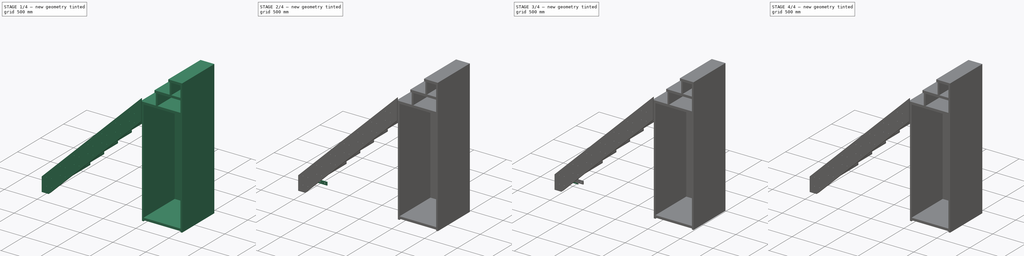
[diagram: build sequence overview — one tinted view per stage of 4, left to right]
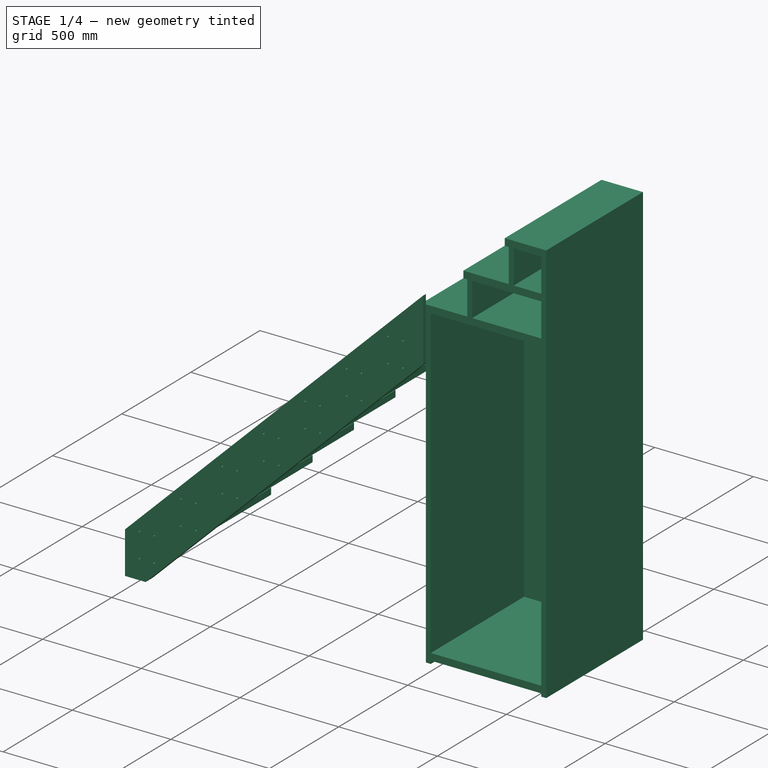
[diagram: stage 1 of 4 — iso view after this stage's code; geometry added in this stage tinted green]
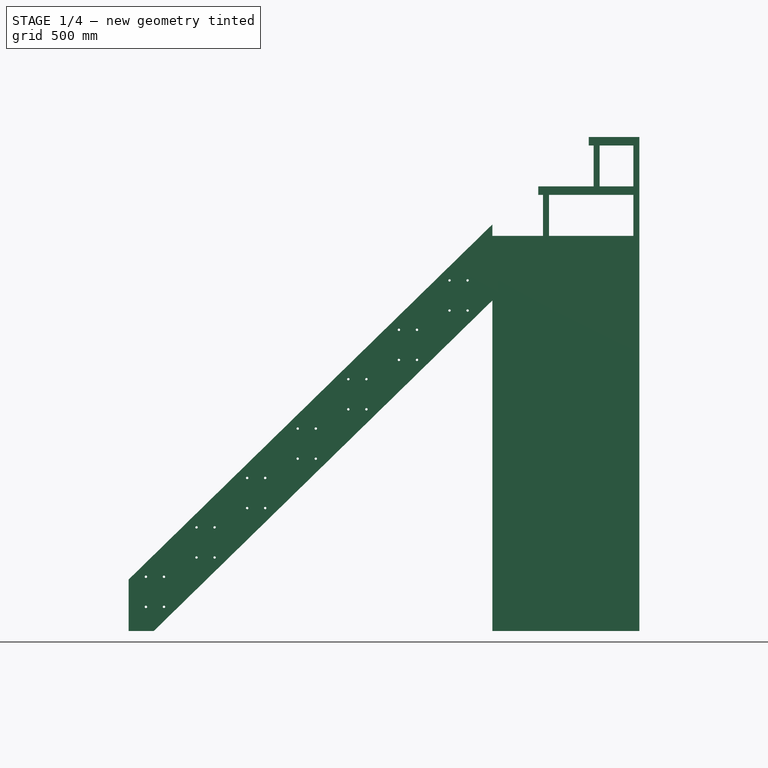
[diagram: stage 1 of 4 — front view after this stage's code; geometry added in this stage tinted green]
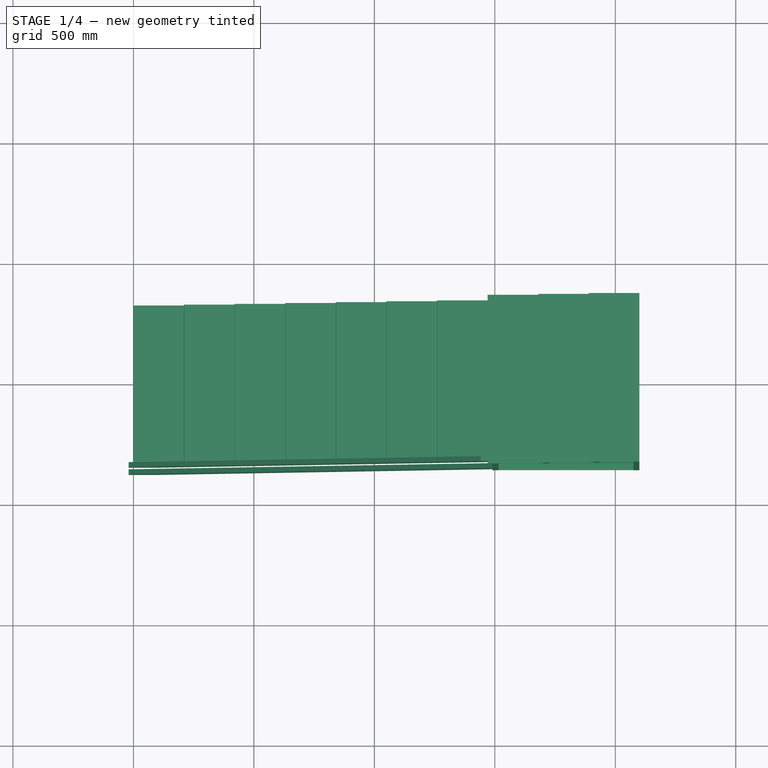
[diagram: stage 1 of 4 — top view after this stage's code; geometry added in this stage tinted green]
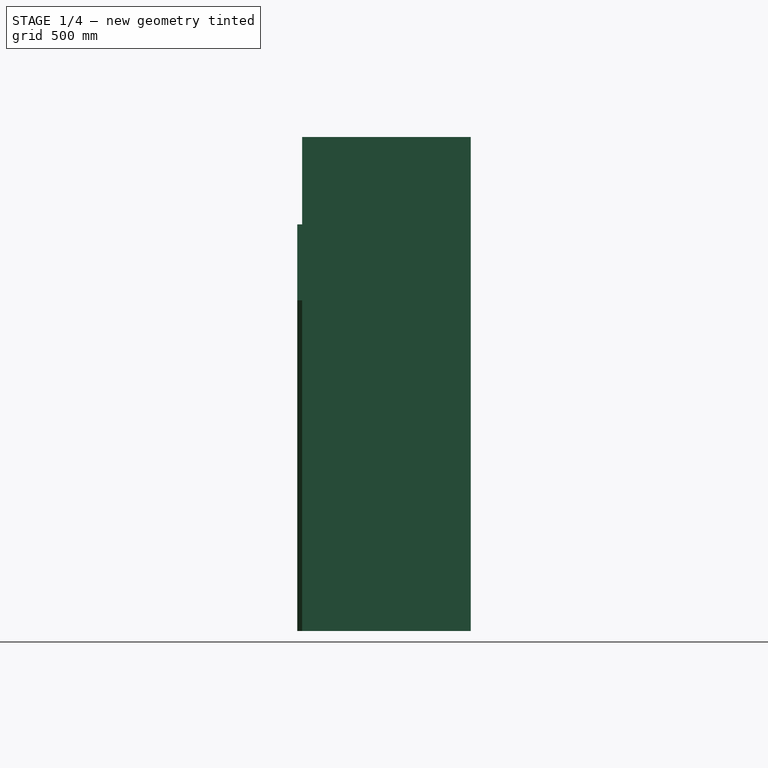
[diagram: stage 1 of 4 — right view after this stage's code; geometry added in this stage tinted green]
FCSTD DOCUMENT  (FreeCAD 0.17R10980 (Git))
Label: beam_plate
License: All rights reserved
LicenseURL: http://en.wikipedia.org/wiki/All_rights_reserved
objects: Sketcher::SketchObject×6, Part::FeaturePython×4, PartDesign::Pocket×4, PartDesign::Pad×2, PartDesign::Fillet×2, PartDesign::Body×2, Part::Compound×1, App::DocumentObjectGroup×1
note: 27 computed .brp shape members not serialized (recipe doc carries the construction recipe); baked Part::Feature solids carry a one-line shape summary decoded from their .brp

FEATURE [Part::FeaturePython] fridge_box_panels_01  # a2plus imported part (geometry in sourceFile) (typed FeaturePython)
  fixedPosition = true
  sourceFile = A711_fridge_box_panels.fcstd
  timeLastImport = 1.49385e+09
  updateColors = true
FEATURE [Part::FeaturePython] step_01  # a2plus imported part (geometry in sourceFile) (typed FeaturePython)
  fixedPosition = false
  sourceFile = step.fcstd
  timeLastImport = 1.4938e+09
  updateColors = true
FEATURE [Part::FeaturePython] stair_profile_01  # a2plus imported part (geometry in sourceFile) (typed FeaturePython)
  fixedPosition = false
  sourceFile = stair_profile.fcstd
  timeLastImport = 1.4938e+09
  updateColors = true
FEATURE [Part::FeaturePython] double_beam_01  # a2plus imported part (geometry in sourceFile) (typed FeaturePython)
  fixedPosition = false
  sourceFile = double_beam.fcstd
  timeLastImport = 1.49389e+09
  updateColors = true
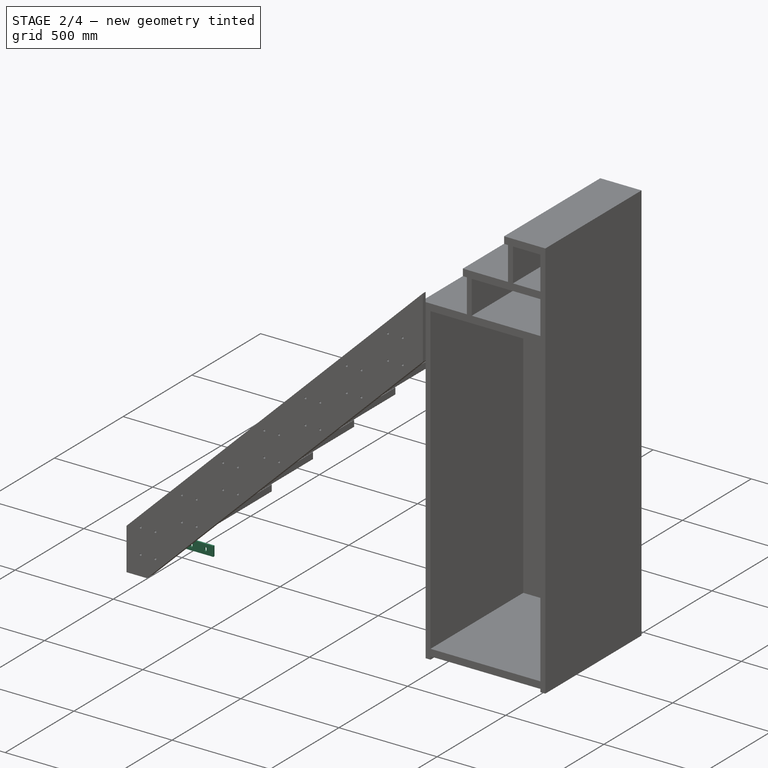
[diagram: stage 2 of 4 — iso view after this stage's code; geometry added in this stage tinted green]
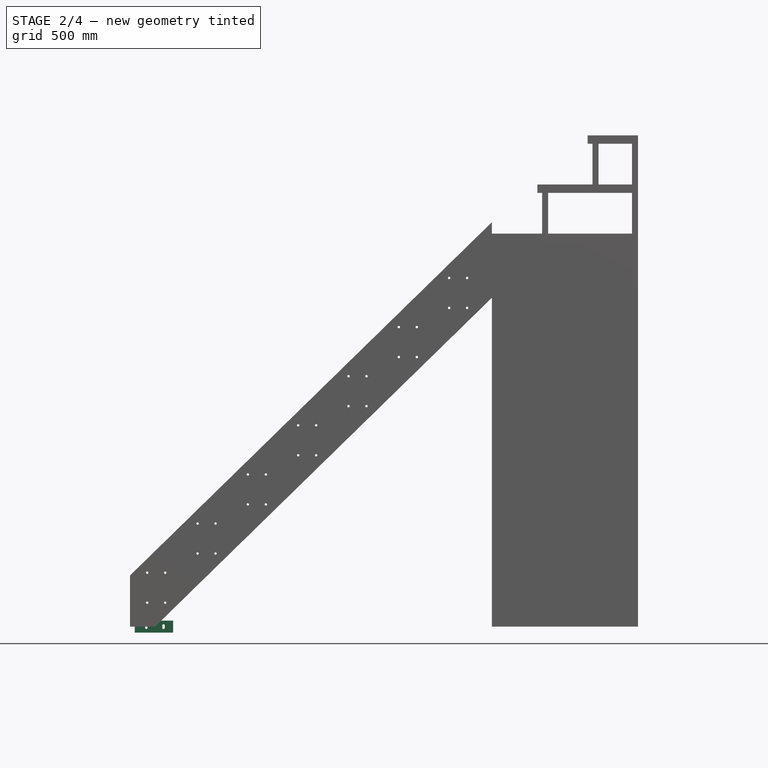
[diagram: stage 2 of 4 — front view after this stage's code; geometry added in this stage tinted green]
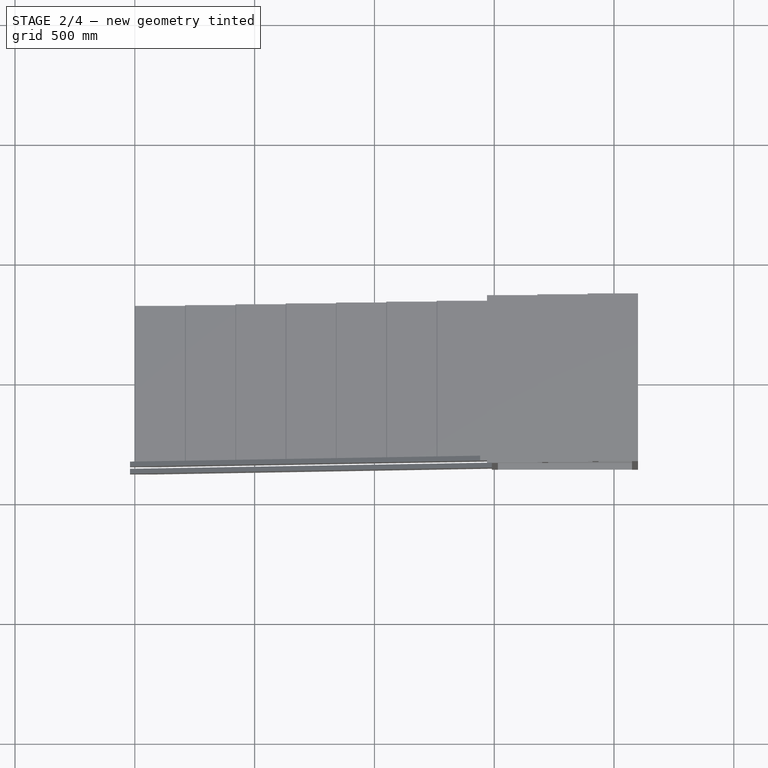
[diagram: stage 2 of 4 — top view after this stage's code; geometry added in this stage tinted green]
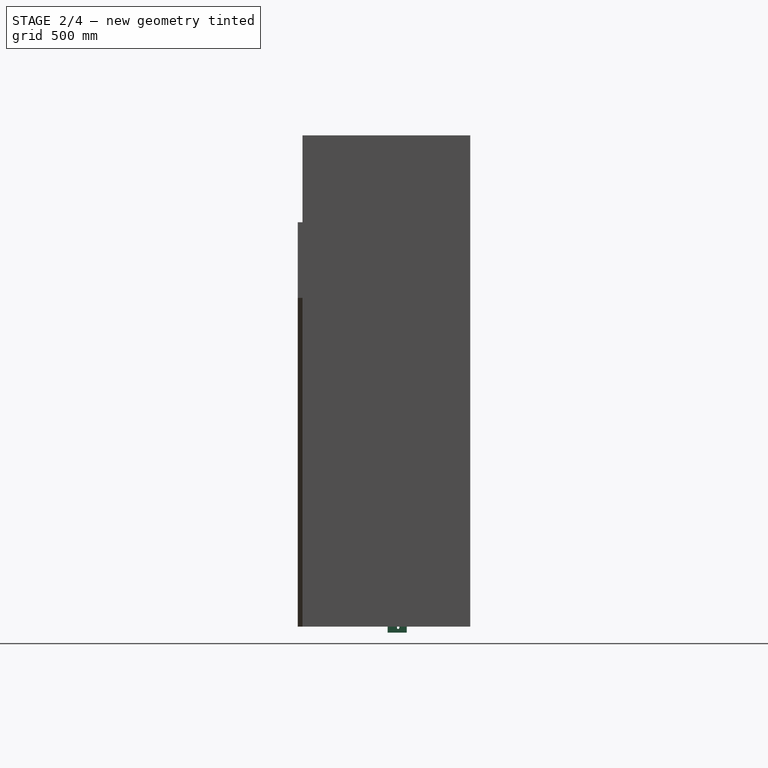
[diagram: stage 2 of 4 — right view after this stage's code; geometry added in this stage tinted green]
FEATURE [PartDesign::Body] Body001  label="beam_plate_body"
  Group = -> [Sketch003,Pad001,Sketch,Pocket,Sketch007,Pocket001,Fillet001]
  Origin = -> Body001Origin
  Placement = pos=(1490,-354,1485) rot=(0,0,1;1.5708rad)
  Tip = -> Fillet001
FEATURE [Sketcher::SketchObject] Sketch008
  MapMode = 5
  Support = -> [XY_Plane002]
  sketch-geometry (6):
    g0: LineSegment StartX=0 StartY=0 StartZ=0 EndX=0 EndY=80 EndZ=0
    g1: LineSegment StartX=0 StartY=80 StartZ=0 EndX=8 EndY=80 EndZ=0
    g2: LineSegment StartX=8 StartY=80 StartZ=0 EndX=8 EndY=8 EndZ=0
    g3: LineSegment StartX=8 StartY=8 StartZ=0 EndX=160 EndY=8 EndZ=0
    g4: LineSegment StartX=160 StartY=8 StartZ=0 EndX=160 EndY=0 EndZ=0
    g5: LineSegment StartX=160 StartY=0 StartZ=0 EndX=0 EndY=0 EndZ=0
  constraints (17):
    c: Coincident(g-1,g0)
    c: PointOnObject(g0,g-2)
    c: Coincident(g0,g1)
    c: Horizontal(g1)
    c: Coincident(g1,g2)
    c: Vertical(g2)
    c: Coincident(g2,g3)
    c: Horizontal(g3)
    c: Coincident(g3,g4)
    c: Vertical(g4)
    c: Coincident(g4,g5)
    c: Coincident(g5,g0)
    c: Horizontal(g5)
    c: DistanceX(g5,g5) = 160
    c: DistanceY(g0,g0) = 80
    c: DistanceY(g4,g4) = 8
    c: Equal(g4,g1)
FEATURE [PartDesign::Pad] Pad002
  Length = 50
  Length2 = 100
  Midplane = true
  Profile = -> Sketch008
  Type = 0
FEATURE [Sketcher::SketchObject] Sketch009
  ExternalGeometry = -> [Pad002]
  MapMode = 5
  Placement = pos=(0,8,0) rot=(0,0.707107,0.707107;3.14159rad)
  Support = -> [Pad002]
  sketch-geometry (10):
    g0: LineSegment [constr] StartX=-160 StartY=0 StartZ=0 EndX=-84 EndY=0 EndZ=0
    g1: LineSegment [constr] StartX=-84 StartY=0 StartZ=0 EndX=-8 EndY=0 EndZ=0
    g2: ArcOfCircle CenterX=-120 CenterY=5 CenterZ=0 NormalX=0 NormalY=0 NormalZ=1 Radius=5 StartAngle=0 EndAngle=3.14159
    g3: ArcOfCircle CenterX=-120 CenterY=-5 CenterZ=0 NormalX=0 NormalY=0 NormalZ=1 Radius=5 StartAngle=3.14159 EndAngle=6.28319
    g4: LineSegment StartX=-125 StartY=5 StartZ=0 EndX=-125 EndY=-5 EndZ=0
    g5: LineSegment StartX=-115 StartY=5 StartZ=0 EndX=-115 EndY=-5 EndZ=0
    g6: ArcOfCircle CenterX=-48 CenterY=-5 CenterZ=0 NormalX=0 NormalY=0 NormalZ=1 Radius=5 StartAngle=3.14159 EndAngle=6.28319
    g7: ArcOfCircle CenterX=-48 CenterY=5 CenterZ=0 NormalX=0 NormalY=0 NormalZ=1 Radius=5 StartAngle=0 EndAngle=3.14159
    g8: LineSegment StartX=-43 StartY=-5 StartZ=0 EndX=-43 EndY=5 EndZ=0
    g9: LineSegment StartX=-53 StartY=-5 StartZ=0 EndX=-53 EndY=5 EndZ=0
  constraints (26):
    c: PointOnObject(g0,g-6)
    c: PointOnObject(g0,g-1)
    c: Horizontal(g0)
    c: Coincident(g1,g0)
    c: PointOnObject(g1,g-5)
    c: Horizontal(g1)
    c: Equal(g0,g1)
    c: Tangent(g2,g5) = 1.5708
    c: Tangent(g2,g4) = -1.5708
    c: Tangent(g4,g3) = -1.5708
    c: Tangent(g5,g3) = 1.5708
    c: Vertical(g4)
    c: Equal(g2,g3)
    c: Tangent(g6,g9) = 1.5708
    c: Tangent(g6,g8) = -1.5708
    c: Tangent(g8,g7) = -1.5708
    c: Tangent(g9,g7) = 1.5708
    c: Vertical(g8)
    c: Equal(g6,g7)
    c: Symmetric(g2,g6,g0)
    c: Symmetric(g2,g3,g0)
    c: Equal(g2,g7)
    c: Equal(g5,g9)
    c: DistanceX(g0,g3) = 40
    c: Radius(g2) = 5
    c: DistanceY(g4,g4) = 10
FEATURE [PartDesign::Pocket] Pocket002
  BaseFeature = -> Pad002
  Length = 5
  Profile = -> Sketch009
  Type = 1
FEATURE [Sketcher::SketchObject] Sketch010
  ExternalGeometry = -> [Pocket002]
  MapMode = 5
  Placement = pos=(8,0,0) rot=(0.57735,0.57735,0.57735;2.0944rad)
  Support = -> [Pocket002]
  sketch-geometry (6):
    g0: LineSegment [constr] StartX=8 StartY=0 StartZ=0 EndX=44 EndY=0 EndZ=0
    g1: LineSegment [constr] StartX=44 StartY=0 StartZ=0 EndX=80 EndY=0 EndZ=0
    g2: ArcOfCircle CenterX=44 CenterY=-5 CenterZ=0 NormalX=0 NormalY=0 NormalZ=1 Radius=5 StartAngle=3.14159 EndAngle=6.28319
    g3: ArcOfCircle CenterX=44 CenterY=5 CenterZ=0 NormalX=0 NormalY=0 NormalZ=1 Radius=5 StartAngle=8e-12 EndAngle=3.14159
    g4: LineSegment StartX=49 StartY=-5 StartZ=0 EndX=49 EndY=5 EndZ=0
    g5: LineSegment StartX=39 StartY=-5 StartZ=0 EndX=39 EndY=5 EndZ=0
  constraints (16):
    c: PointOnObject(g0,g-4)
    c: Horizontal(g0)
    c: PointOnObject(g1,g-1)
    c: PointOnObject(g1,g-5)
    c: Horizontal(g1)
    c: Coincident(g0,g1)
    c: Equal(g1,g0)
    c: Tangent(g2,g5) = 1.5708
    c: Tangent(g2,g4) = -1.5708
    c: Tangent(g4,g3) = -1.5708
    c: Tangent(g5,g3) = 1.5708
    c: Vertical(g4)
    c: Equal(g2,g3)
    c: Symmetric(g2,g3,g0)
    c: Radius(g3) = 5
    c: DistanceY(g4,g4) = 10
FEATURE [PartDesign::Pocket] Pocket003
  BaseFeature = -> Pocket002
  Length = 5
  Profile = -> Sketch010
  Type = 1
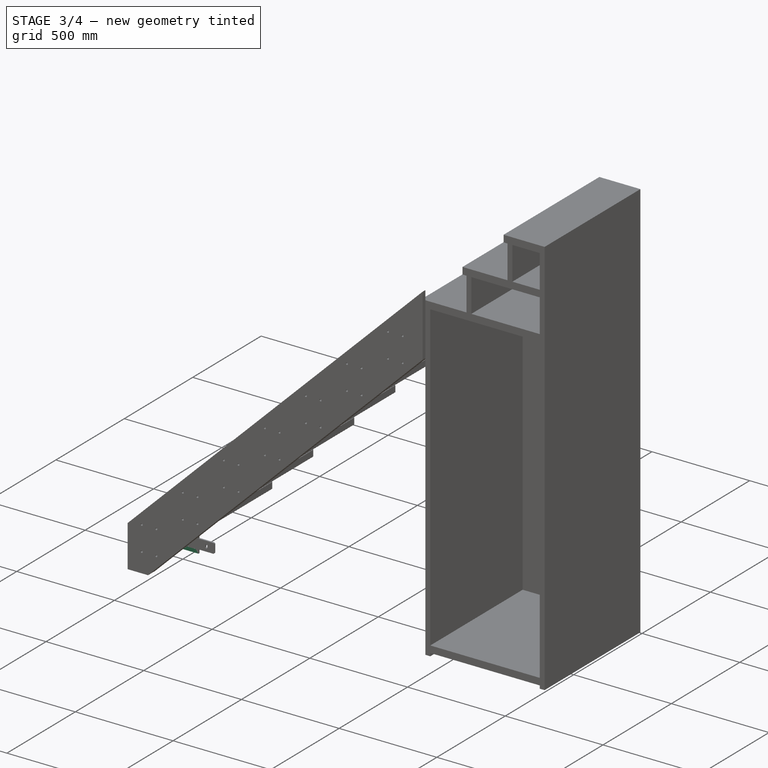
[diagram: stage 3 of 4 — iso view after this stage's code; geometry added in this stage tinted green]
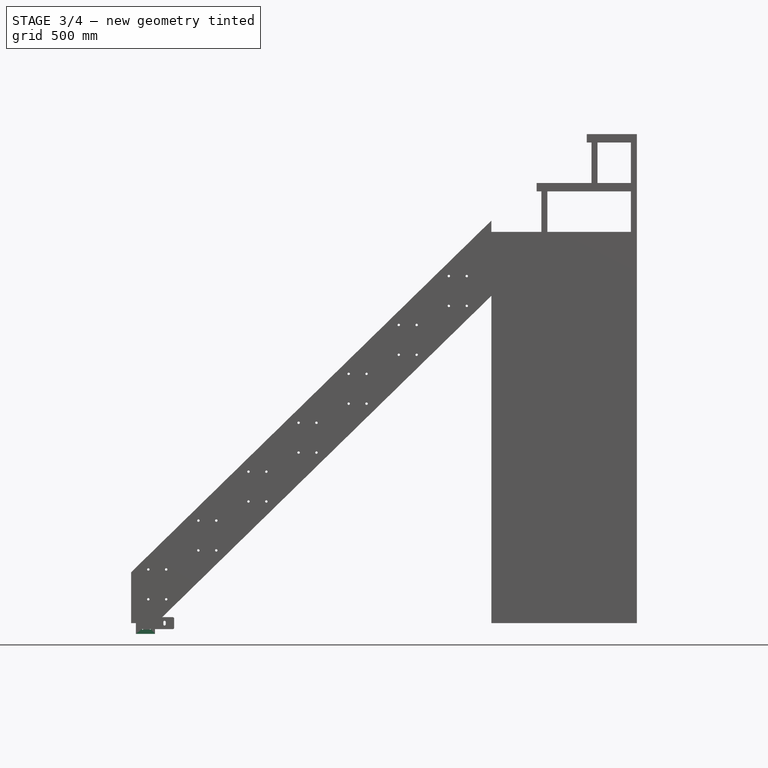
[diagram: stage 3 of 4 — front view after this stage's code; geometry added in this stage tinted green]
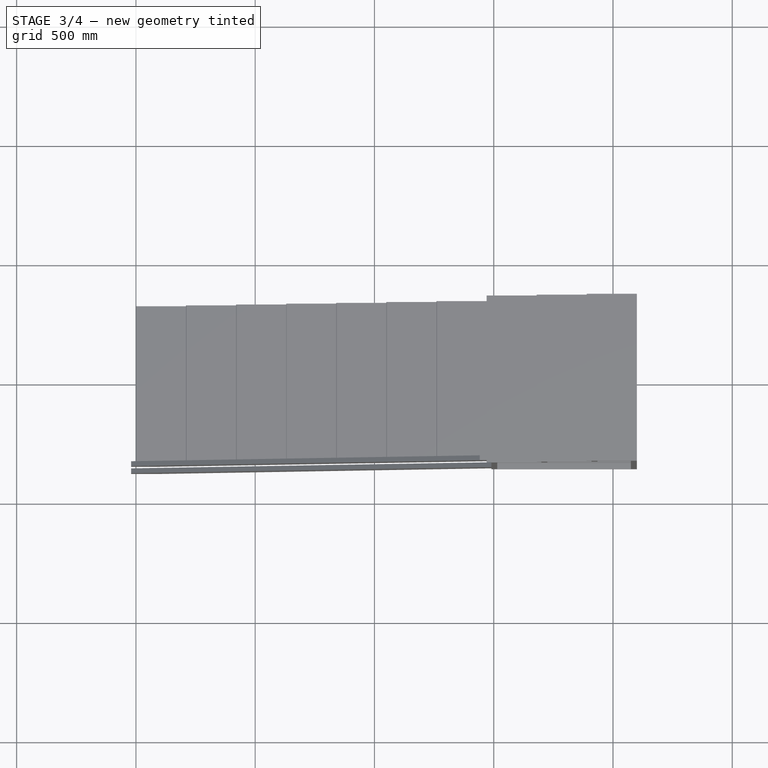
[diagram: stage 3 of 4 — top view after this stage's code; geometry added in this stage tinted green]
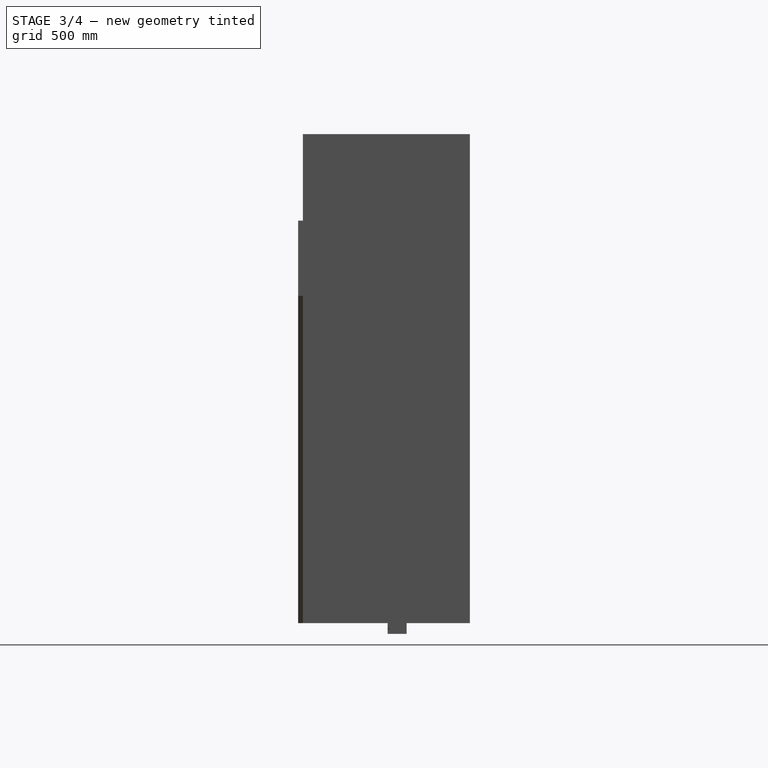
[diagram: stage 3 of 4 — right view after this stage's code; geometry added in this stage tinted green]
FEATURE [Sketcher::SketchObject] Sketch003
  MapMode = 5
  Support = -> [XY_Plane001]
  sketch-geometry (6):
    g0: LineSegment StartX=0 StartY=0 StartZ=0 EndX=0 EndY=80 EndZ=0
    g1: LineSegment StartX=0 StartY=80 StartZ=0 EndX=8 EndY=80 EndZ=0
    g2: LineSegment StartX=8 StartY=80 StartZ=0 EndX=8 EndY=8 EndZ=0
    g3: LineSegment StartX=8 StartY=8 StartZ=0 EndX=80 EndY=8 EndZ=0
    g4: LineSegment StartX=80 StartY=8 StartZ=0 EndX=80 EndY=0 EndZ=0
    g5: LineSegment StartX=80 StartY=0 StartZ=0 EndX=0 EndY=0 EndZ=0
  constraints (17):
    c: Coincident(g-1,g0)
    c: PointOnObject(g0,g-2)
    c: Coincident(g0,g1)
    c: Horizontal(g1)
    c: Coincident(g1,g2)
    c: Vertical(g2)
    c: Coincident(g2,g3)
    c: Horizontal(g3)
    c: Coincident(g3,g4)
    c: Vertical(g4)
    c: Coincident(g4,g5)
    c: Coincident(g5,g0)
    c: Horizontal(g5)
    c: DistanceX(g5,g5) = 80
    c: DistanceY(g0,g0) = 80
    c: DistanceY(g4,g4) = 8
    c: Equal(g4,g1)
FEATURE [PartDesign::Pad] Pad001
  Length = 90
  Length2 = 100
  Midplane = true
  Profile = -> Sketch003
  Type = 0
FEATURE [Sketcher::SketchObject] Sketch
  ExternalGeometry = -> [Pad001]
  MapMode = 5
  Placement = pos=(0,8,0) rot=(0,0.707107,0.707107;3.14159rad)
  Support = -> [Pad001]
  sketch-geometry (6):
    g0: Circle CenterX=-60 CenterY=25 CenterZ=0 NormalX=0 NormalY=0 NormalZ=1 Radius=2.5
    g1: Circle CenterX=-28 CenterY=-25 CenterZ=0 NormalX=0 NormalY=0 NormalZ=1 Radius=2.5
    g2: Circle CenterX=-28 CenterY=25 CenterZ=0 NormalX=0 NormalY=0 NormalZ=1 Radius=2.5
    g3: Circle CenterX=-60 CenterY=-25 CenterZ=0 NormalX=0 NormalY=0 NormalZ=1 Radius=2.5
    g4: LineSegment [constr] StartX=-80 StartY=0 StartZ=0 EndX=-44 EndY=0 EndZ=0
    g5: LineSegment [constr] StartX=-44 StartY=0 StartZ=0 EndX=-8 EndY=0 EndZ=0
  constraints (16):
    c: DistanceX(g0,g-6) = -20
    c: DistanceY(g0,g-6) = 20
    c: Symmetric(g0,g3,g-1)
    c: PointOnObject(g4,g-6)
    c: PointOnObject(g4,g-1)
    c: Horizontal(g4)
    c: Coincident(g5,g4)
    c: PointOnObject(g5,g-5)
    c: Horizontal(g5)
    c: Equal(g4,g5)
    c: Symmetric(g1,g0,g4)
    c: Symmetric(g2,g1,g-1)
    c: Radius(g0) = 2.5
    c: Equal(g2,g1)
    c: Equal(g1,g3)
    c: Equal(g3,g0)
FEATURE [PartDesign::Pocket] Pocket
  BaseFeature = -> Pad001
  Length = 5
  Profile = -> Sketch
  Type = 1
FEATURE [PartDesign::Fillet] Fillet
  Base = -> Pocket003 [Edge24,Edge20,Edge23,Edge27]
  BaseFeature = -> Pocket003
  Radius = 5
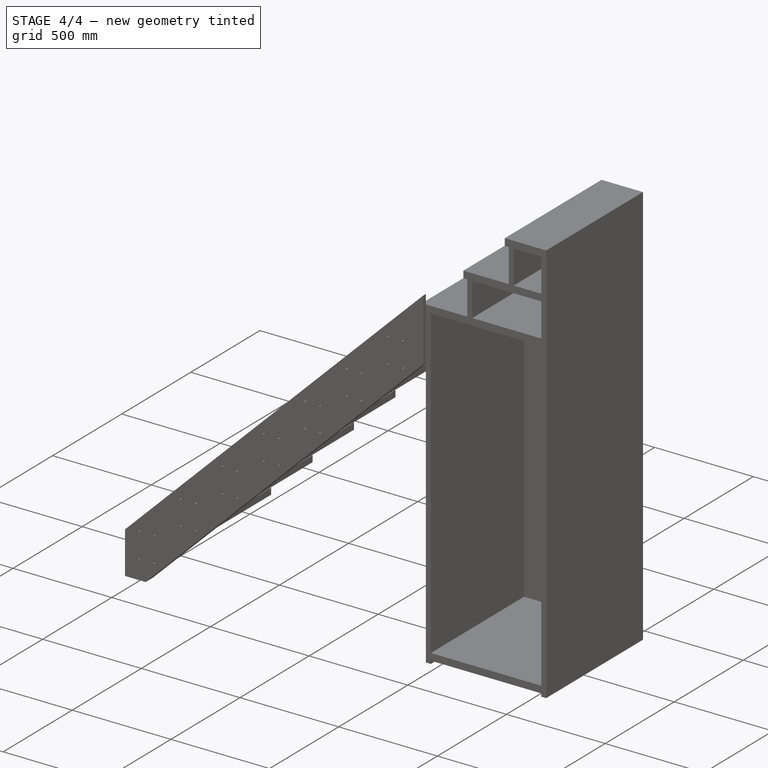
[diagram: stage 4 of 4 — iso view after this stage's code; geometry added in this stage tinted green]
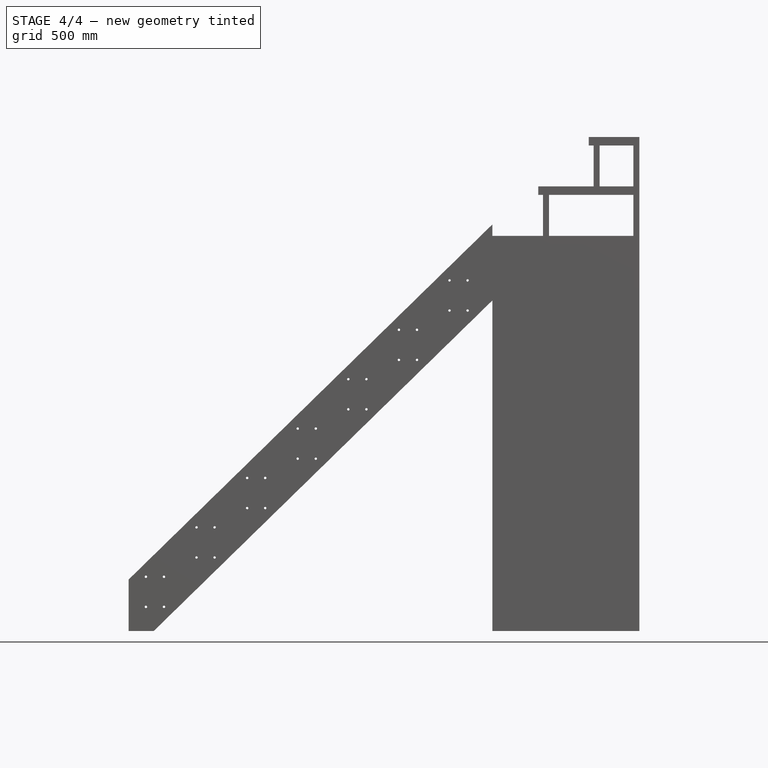
[diagram: stage 4 of 4 — front view after this stage's code; geometry added in this stage tinted green]
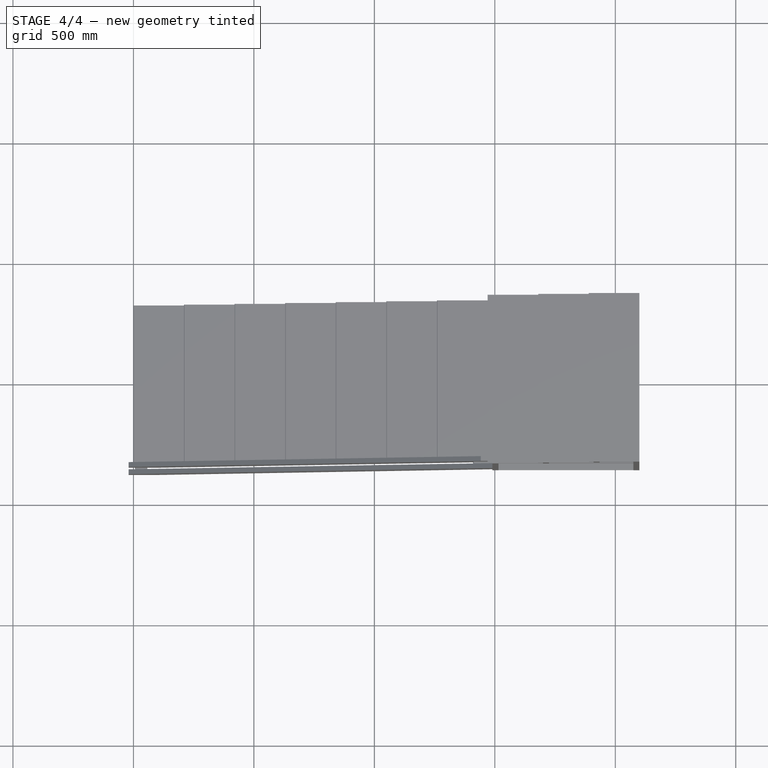
[diagram: stage 4 of 4 — top view after this stage's code; geometry added in this stage tinted green]
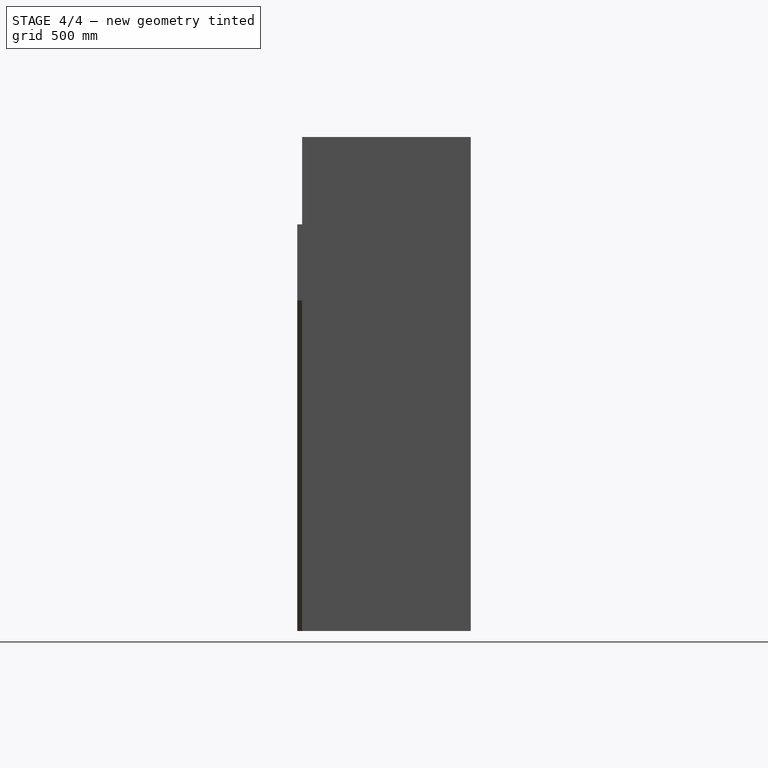
[diagram: stage 4 of 4 — right view after this stage's code; geometry added in this stage tinted green]
FEATURE [Sketcher::SketchObject] Sketch007
  ExternalGeometry = -> [Pocket]
  MapMode = 5
  Placement = pos=(8,0,0) rot=(0.57735,0.57735,0.57735;2.0944rad)
  Support = -> [Pocket]
  sketch-geometry (10):
    g0: ArcOfCircle CenterX=39 CenterY=25 CenterZ=0 NormalX=0 NormalY=0 NormalZ=1 Radius=5 StartAngle=1.5708 EndAngle=4.71239
    g1: ArcOfCircle CenterX=49 CenterY=25 CenterZ=0 NormalX=0 NormalY=0 NormalZ=1 Radius=5 StartAngle=4.71239 EndAngle=7.85398
    g2: LineSegment StartX=39 StartY=20 StartZ=0 EndX=49 EndY=20 EndZ=0
    g3: LineSegment StartX=39 StartY=30 StartZ=0 EndX=49 EndY=30 EndZ=0
    g4: ArcOfCircle CenterX=39 CenterY=-25 CenterZ=0 NormalX=0 NormalY=0 NormalZ=1 Radius=5 StartAngle=1.5708 EndAngle=4.71239
    g5: ArcOfCircle CenterX=49 CenterY=-25 CenterZ=0 NormalX=0 NormalY=0 NormalZ=1 Radius=5 StartAngle=4.71239 EndAngle=7.85398
    g6: LineSegment StartX=39 StartY=-30 StartZ=0 EndX=49 EndY=-30 EndZ=0
    g7: LineSegment StartX=39 StartY=-20 StartZ=0 EndX=49 EndY=-20 EndZ=0
    g8: LineSegment [constr] StartX=8 StartY=0 StartZ=0 EndX=44 EndY=0 EndZ=0
    g9: LineSegment [constr] StartX=44 StartY=0 StartZ=0 EndX=80 EndY=0 EndZ=0
  constraints (26):
    c: Tangent(g0,g3) = 1.5708
    c: Tangent(g0,g2) = -1.5708
    c: Tangent(g2,g1) = -1.5708
    c: Tangent(g3,g1) = 1.5708
    c: Horizontal(g2)
    c: Equal(g0,g1)
    c: Radius(g1) = 5
    c: Tangent(g4,g7) = 1.5708
    c: Tangent(g4,g6) = -1.5708
    c: Tangent(g6,g5) = -1.5708
    c: Tangent(g7,g5) = 1.5708
    c: Horizontal(g6)
    c: Equal(g4,g5)
    c: Equal(g5,g1)
    c: DistanceX(g2,g2) = 10
    c: Equal(g2,g7)
    c: PointOnObject(g8,g-6)
    c: PointOnObject(g8,g-1)
    c: Horizontal(g8)
    c: Coincident(g9,g8)
    c: PointOnObject(g9,g-4)
    c: Horizontal(g9)
    c: Equal(g8,g9)
    c: Symmetric(g0,g5,g8)
    c: Symmetric(g0,g4,g-1)
    c: DistanceY(g0,g-6) = 20
FEATURE [PartDesign::Pocket] Pocket001
  BaseFeature = -> Pocket
  Length = 5
  Profile = -> Sketch007
  Type = 1
FEATURE [PartDesign::Fillet] Fillet001
  Base = -> Pocket001 [Edge24,Edge27,Edge20,Edge23]
  BaseFeature = -> Pocket001
  Radius = 5
FEATURE [PartDesign::Body] Body002  label="beam_plate_body002"
  Group = -> [Sketch008,Pad002,Sketch009,Pocket002,Sketch010,Pocket003,Fillet]
  Origin = -> Body001Origin001
  Placement = pos=(32.2,-354,0) rot=(0.57735,0.57735,0.57735;2.0944rad)
  Tip = -> Fillet
FEATURE [Part::Compound] Compound
  Links = -> [Body002,Body001]
FEATURE [App::DocumentObjectGroup] Group  label="utilities"
  Group = -> [fridge_box_panels_01,step_01,stair_profile_01,double_beam_01]
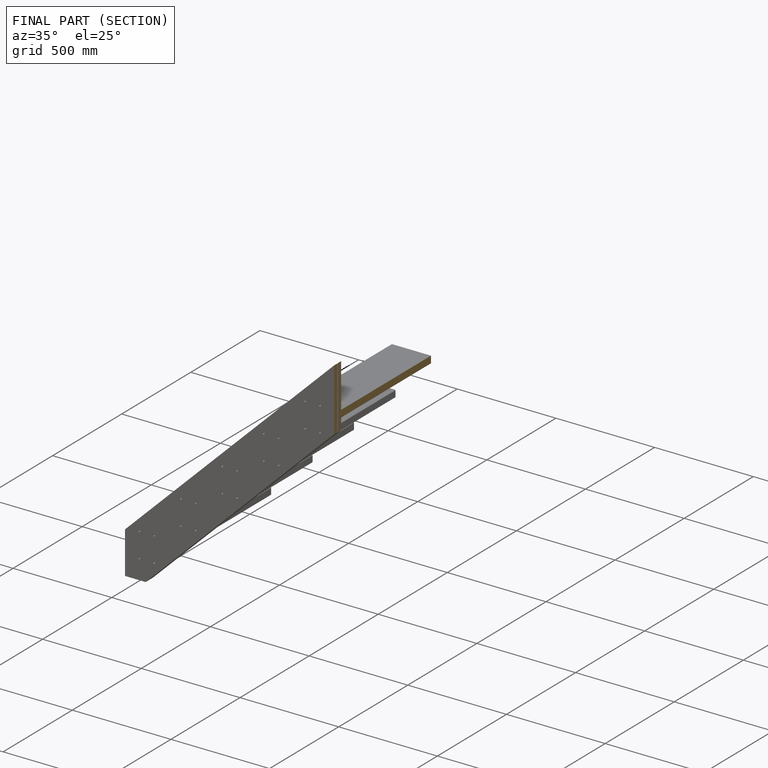
[diagram: finished part — half-section view (interior)]
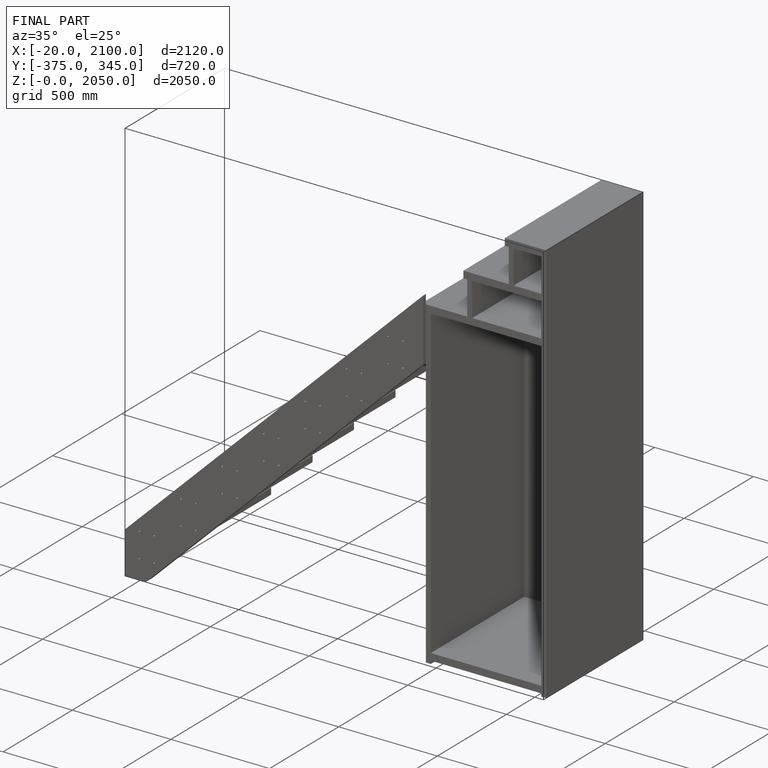
[diagram: finished part — iso view with bounding-box wireframe]
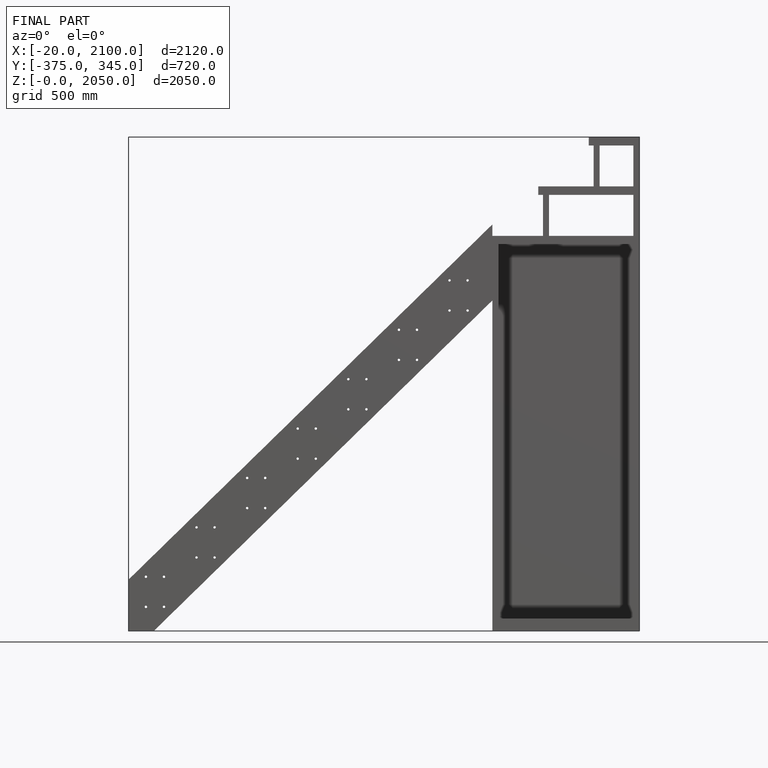
[diagram: finished part — front view with bounding-box wireframe]
